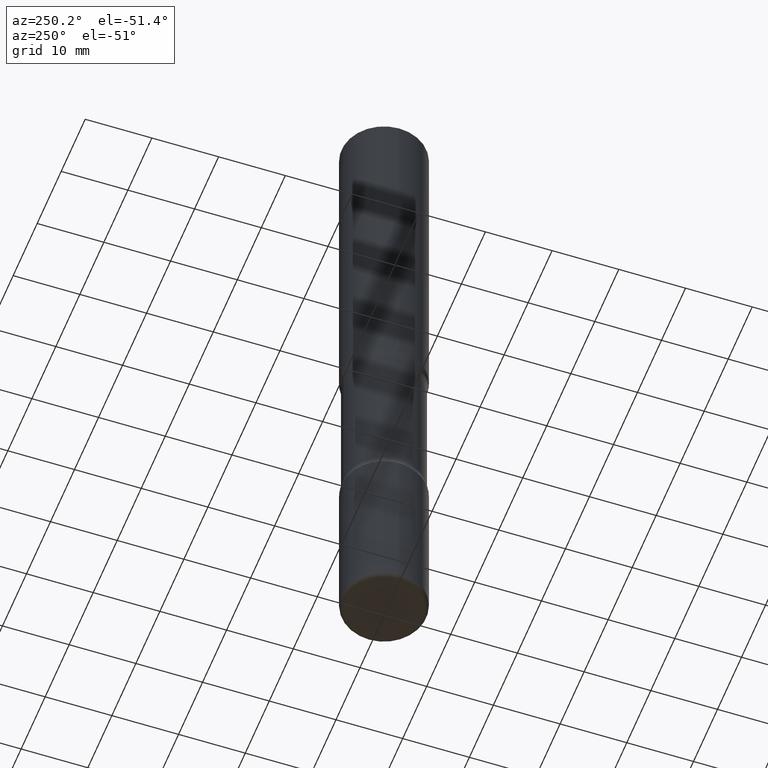
[diagram: clean part render]
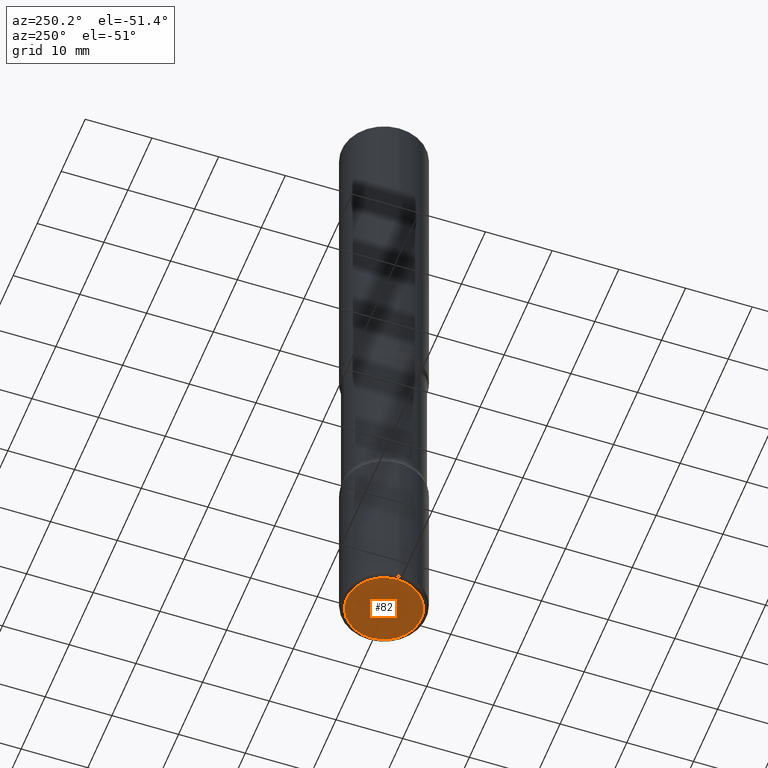
[diagram: same view with one face highlighted and labeled with its STEP entity id]
A machine part, auxiliary view. The second image highlights one B-rep face of the part: STEP entity #82.
In plain terms, the highlighted planar face has unit normal (0, -0, -1).
Its self-contained STEP definition (entity closure, byte-faithful):
#15 = AXIS2_PLACEMENT_3D ( 'NONE', #536, #331, #414 ) ;
#17 = VERTEX_POINT ( 'NONE', #290 ) ;
#27 = CIRCLE ( 'NONE', #15, 0.2200000000000000844 ) ;
#40 = CARTESIAN_POINT ( 'NONE',  ( -0.2200000000000000844, -1.224377770625369636E-14, -4.000000000000000000 ) ) ;
#78 = DIRECTION ( 'NONE',  ( 2.438088387897960049E-29, -3.491481338843145188E-15, -1.000000000000000000 ) ) ;
#82 = ADVANCED_FACE ( 'NONE', ( #551 ), #130, .T. ) ;
#96 = AXIS2_PLACEMENT_3D ( 'NONE', #295, #467, #169 ) ;
#130 = PLANE ( 'NONE',  #349 ) ;
#150 = VERTEX_POINT ( 'NONE', #40 ) ;
#169 = DIRECTION ( 'NONE',  ( 1.000000000000000000, -6.982962677686268288E-15, 0.000000000000000000 ) ) ;
#203 = ORIENTED_EDGE ( 'NONE', *, *, #354, .F. ) ;
#270 = EDGE_LOOP ( 'NONE', ( #203, #371 ) ) ;
#290 = CARTESIAN_POINT ( 'NONE',  ( 0.2200000000000000844, -1.550217714446356069E-14, -4.000000000000000000 ) ) ;
#295 = CARTESIAN_POINT ( 'NONE',  ( 9.781875224740546387E-29, -1.396592535537258233E-14, -4.000000000000000000 ) ) ;
#305 = DIRECTION ( 'NONE',  ( -1.000000000000000000, 6.982962677686265922E-15, -4.876176775795935793E-29 ) ) ;
#331 = DIRECTION ( 'NONE',  ( -2.445468806185136597E-29, 3.491481338843145583E-15, 1.000000000000000000 ) ) ;
#349 = AXIS2_PLACEMENT_3D ( 'NONE', #470, #78, #305 ) ;
#354 = EDGE_CURVE ( 'NONE', #17, #150, #356, .T. ) ;
#356 = CIRCLE ( 'NONE', #96, 0.2200000000000000844 ) ;
#371 = ORIENTED_EDGE ( 'NONE', *, *, #469, .F. ) ;
#414 = DIRECTION ( 'NONE',  ( 1.000000000000000000, -6.982962677686268288E-15, 0.000000000000000000 ) ) ;
#467 = DIRECTION ( 'NONE',  ( -2.445468806185136597E-29, 3.491481338843145583E-15, 1.000000000000000000 ) ) ;
#469 = EDGE_CURVE ( 'NONE', #150, #17, #27, .T. ) ;
#470 = CARTESIAN_POINT ( 'NONE',  ( 9.781875224740546387E-29, -1.396592535537258233E-14, -4.000000000000000000 ) ) ;
#536 = CARTESIAN_POINT ( 'NONE',  ( 9.781875224740546387E-29, -1.396592535537258233E-14, -4.000000000000000000 ) ) ;
#551 = FACE_OUTER_BOUND ( 'NONE', #270, .T. ) ;